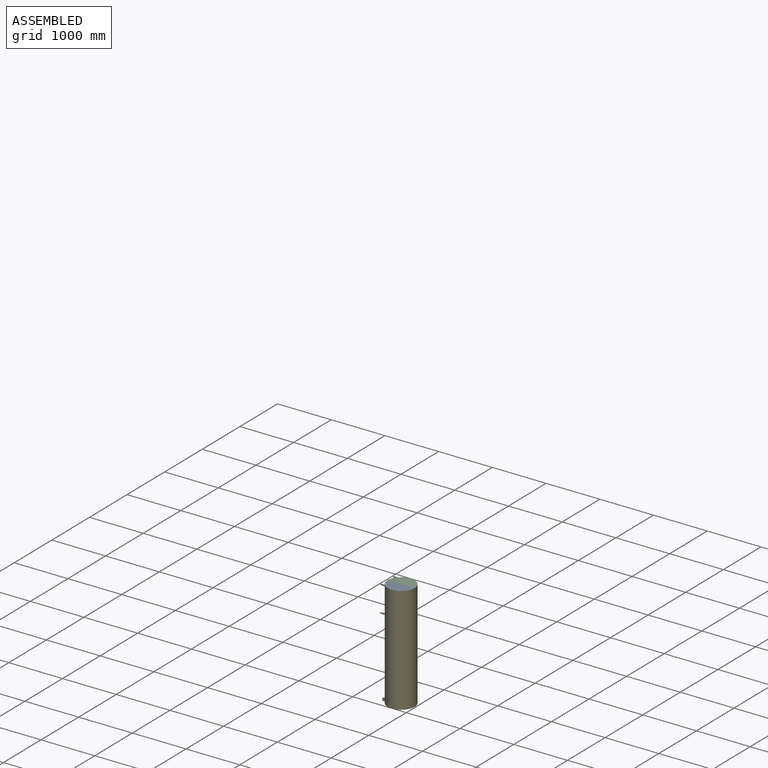
[diagram: assembled view]
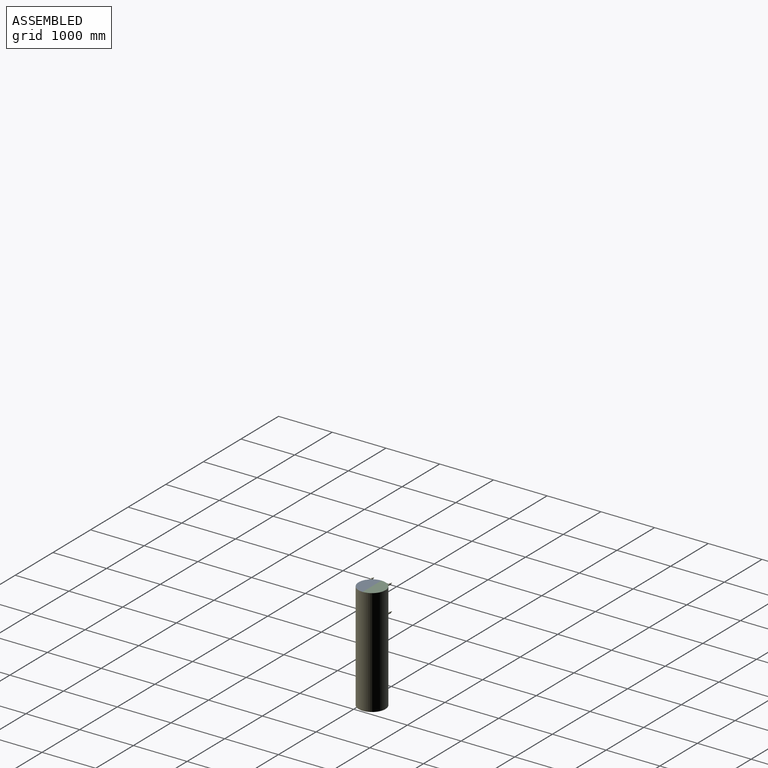
[diagram: assembled view, second angle]
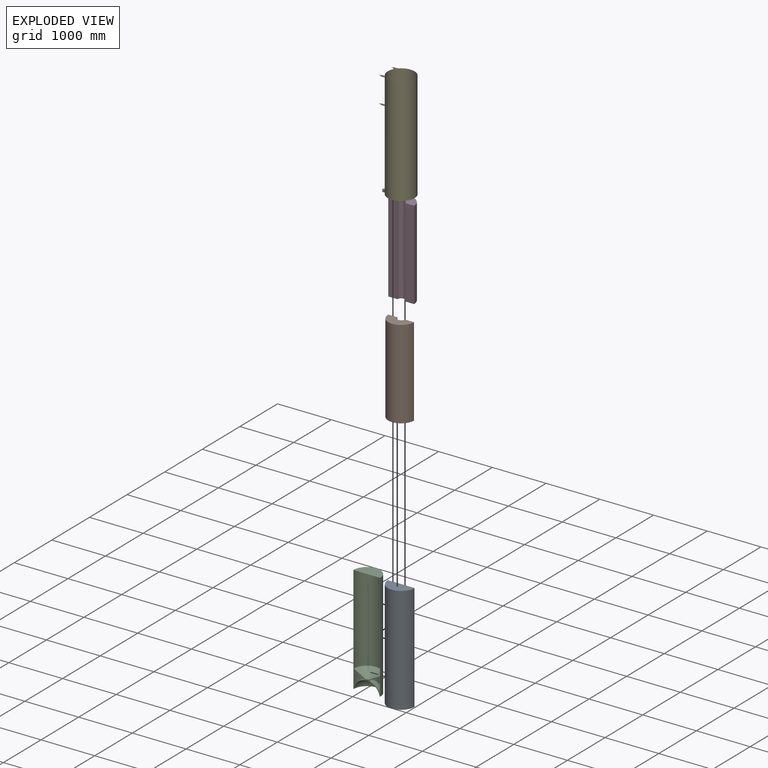
[diagram: exploded view]
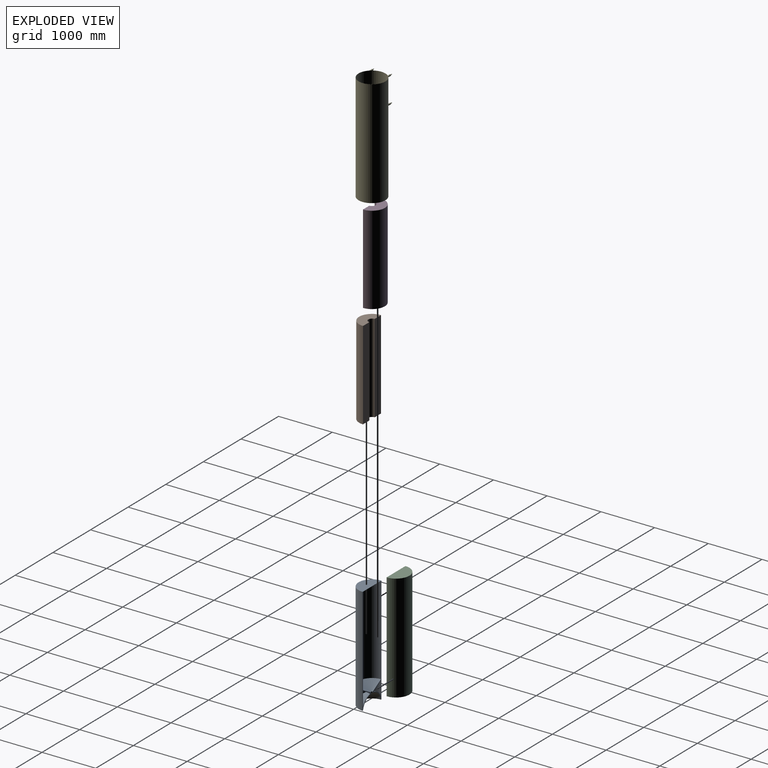
[diagram: exploded view, second angle]
ASSEMBLY  parts=5 mates=4
PART A: 13 faces, bbox 499x249.5x2000 mm
  f0: plane 2000x499mm, normal (0,-1,0), area 54441.9mm2, adj f1,f2,f3,f4,f5,f6,f7,f8
  f1: plane 499x249.5mm, normal (0,0,-1), area 7304.6mm2, adj f0,f4,f8
  f2: plane 499x249.5mm, normal (0,0,1), area 97782.5mm2, adj f0,f8
  f3: cylinder r=20mm len=40mm, axis (0,0,1), area 1256.6mm2, adj f0,f4,f5
  f4: sphere r=244mm, area 152680.3mm2, adj f0,f1,f3
  f5: cone r=20mm half-angle=60.4deg, axis (0,0,1), area 103339.9mm2, adj f0,f3,f6
  f6: cylinder r=240mm len=1654.82mm, axis (0,0,-1), area 1247705.7mm2, adj f0,f5,f7
  f7: plane 480x240mm, normal (0,0,-1), area 90477.9mm2, adj f0,f6
  f8: cylinder r=249.5mm len=2000mm, axis (0,0,1), area 1567654.7mm2, adj f0,f1,f2
  f9: cone r=52.51mm half-angle=59.8deg, axis (0,0,1), area 99633.5mm2, adj f0,f10,f12
  f10: cylinder r=52.51mm len=105.01mm, axis (0,0,1), area 1951.3mm2, adj f0,f9,f11
  f11: revolved ~480x240mm, area 130208.8mm2, adj f0,f10,f12
  f12: cylinder r=240mm len=480mm, axis (0,0,1), area 211115mm2, adj f0,f9,f11
PART B: 6 faces, bbox 480x240x1655 mm
  f0: plane 1655x170mm, normal (0,1,0), area 281350mm2, adj f2,f3,f4,f5
  f1: plane 1655x170mm, normal (0,1,0), area 281350mm2, adj f2,f3,f4,f5
  f2: cylinder r=240mm len=1655mm, axis (0,0,1), area 1247840.6mm2, adj f0,f1,f3,f4
  f3: plane 480x240mm, normal (0,0,-1), area 82781mm2, adj f0,f1,f2,f5
  f4: plane 480x240mm, normal (0,0,1), area 82781mm2, adj f0,f1,f2,f5
  f5: cylinder r=70mm len=1655mm, axis (0,0,1), area 363953.5mm2, adj f0,f1,f3,f4
PART C: same geometry as A
PART D: 6 faces, bbox 480x240x1655 mm
  f0: plane 1655x170mm, normal (0,-1,0), area 281350mm2, adj f2,f3,f4,f5
  f1: plane 1655x170mm, normal (0,-1,0), area 281350mm2, adj f2,f3,f4,f5
  f2: cylinder r=240mm len=1655mm, axis (0,0,1), area 1247840.6mm2, adj f0,f1,f3,f4
  f3: plane 480x240mm, normal (0,0,-1), area 82781mm2, adj f0,f1,f2,f5
  f4: plane 480x240mm, normal (0,0,1), area 82781mm2, adj f0,f1,f2,f5
  f5: cylinder r=70mm len=1655mm, axis (0,0,1), area 363953.5mm2, adj f0,f1,f3,f4
PART E: 34 faces, bbox 535x500x2000 mm
  f0: plane 60.27x20mm, normal (0,-1,0), area 1205.3mm2, adj f5,f8,f11,f23
  f1: plane 60.27x20mm, normal (0,1,0), area 1205.3mm2, adj f9,f10,f11,f22
  f2: plane 505x500mm, normal (0,0,1), area 3541.5mm2, adj f3,f11,f13,f14,f15,f21,f24,f25
  f3: plane 78.22x20mm, normal (0,-1,0), area 1564.5mm2, adj f2,f6,f11,f25
  f4: plane 78.22x20mm, normal (0,-1,0), area 1564.5mm2, adj f9,f10,f11,f22
  f5: plane 78.22x20mm, normal (0,0,1), area 1378.4mm2, adj f0,f11,f12,f23
  f6: plane 78.22x20mm, normal (0,0,-1), area 1378.4mm2, adj f3,f11,f14,f25
  f7: plane 78.22x20mm, normal (0,0,-1), area 1378.4mm2, adj f11,f13,f15,f24
  f8: plane 78.22x20mm, normal (0,0,-1), area 1378.4mm2, adj f0,f11,f12,f23
  f9: plane 78.22x20mm, normal (0,0,-1), area 1378.4mm2, adj f1,f4,f11,f22
  f10: plane 78.22x20mm, normal (0,0,1), area 1378.4mm2, adj f1,f4,f11,f22
  f11: cylinder r=250mm len=2000mm, axis (0,0,-1), area 3129153.4mm2, adj f0,f1,f2,f3,f4,f5,f6,f7
  f12: plane 78.22x20mm, normal (0,1,0), area 1564.5mm2, adj f5,f8,f11,f23
  f13: plane 78.22x20mm, normal (0,1,0), area 1564.5mm2, adj f2,f7,f11,f24
  f14: plane 60.27x20mm, normal (0,1,0), area 1205.3mm2, adj f2,f6,f11,f25
  f15: plane 60.27x20mm, normal (0,-1,0), area 1205.3mm2, adj f2,f7,f11,f24
  f16: plane 530.87x500mm, normal (0,0,-1), area 5519.3mm2, adj f11,f17,f18,f19,f21
  f17: plane 51.74x50mm, normal (0,1,0), area 2587.1mm2, adj f11,f16,f18,f20
  f18: cylinder r=250mm len=200mm, axis (0,0,-1), area 10287.9mm2, adj f16,f17,f19,f20
  f19: plane 51.74x50mm, normal (0,-1,0), area 2587.1mm2, adj f11,f16,f18,f20
  f20: plane 200x51.74mm, normal (0,0,1), area 4734.6mm2, adj f11,f17,f18,f19
  f21: cylinder r=249.5mm len=2000mm, axis (0,0,1), area 3135309.5mm2, adj f2,f16
  f22: plane 20x20mm, normal (-1,0,0), area 286.9mm2, adj f1,f4,f9,f10,f30
  f23: plane 20x20mm, normal (-1,0,0), area 286.9mm2, adj f0,f5,f8,f12,f32
  f24: plane 20x20mm, normal (-1,0,0), area 286.9mm2, adj f2,f7,f13,f15,f26
  f25: plane 20x20mm, normal (-1,0,0), area 286.9mm2, adj f2,f3,f6,f14,f28
  f26: cylinder r=6mm len=30mm, axis (1,0,0), area 1131mm2, adj f24,f27
  f27: plane 12x12mm, normal (-1,0,0), area 113.1mm2, adj f26
  f28: cylinder r=6mm len=30mm, axis (1,0,0), area 1131mm2, adj f25,f29
  f29: plane 12x12mm, normal (-1,0,0), area 113.1mm2, adj f28
  f30: cylinder r=6mm len=30mm, axis (1,0,0), area 1131mm2, adj f22,f31
  f31: plane 12x12mm, normal (-1,0,0), area 113.1mm2, adj f30
  f32: cylinder r=6mm len=30mm, axis (1,0,0), area 1131mm2, adj f23,f33
  f33: plane 12x12mm, normal (-1,0,0), area 113.1mm2, adj f32
PLACE A rot(axis=(0,0,1),180deg) t=(-225.18,184.6,-340.96)mm
PLACE B t=(-225.18,184.6,-341.96)mm
PLACE C t=(-225.18,184.6,-340.96)mm fixed
PLACE D t=(-225.18,184.6,-341.96)mm
PLACE E t=(-225.18,184.6,-340.96)mm
MATE fastened E.f21 <-> C.f5  axis (0,0,1) through (-225.18,184.6,-340.96)mm
MATE fastened D.f5 <-> B.f2  axis (0,0,1) through (-225.18,184.6,1657.04)mm
MATE fastened D.f5 <-> C.f6  axis (0,0,1) through (-225.18,184.6,1657.04)mm
MATE fastened C.f5 <-> A.f5  axis (0,0,1) through (-225.18,184.6,1659.04)mm
